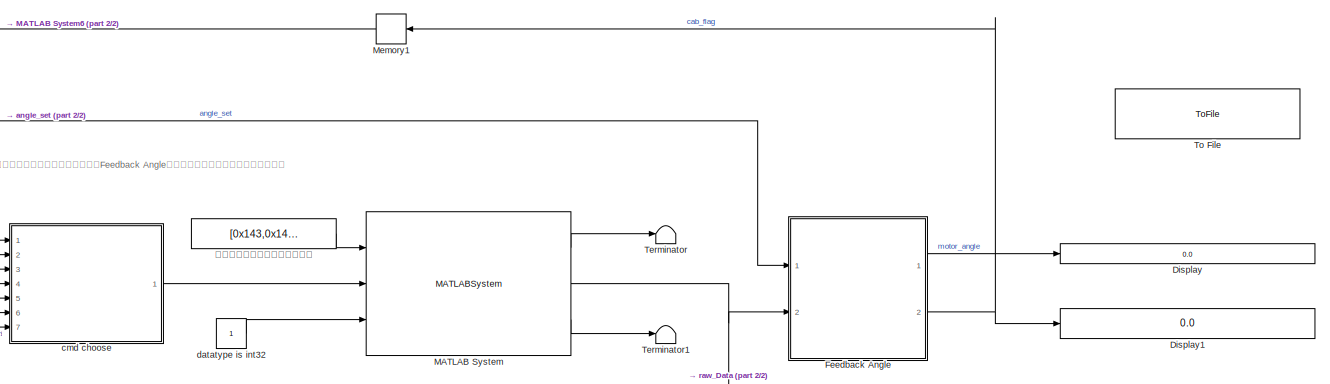
[diagram: root canvas - part 1/2, top right region]
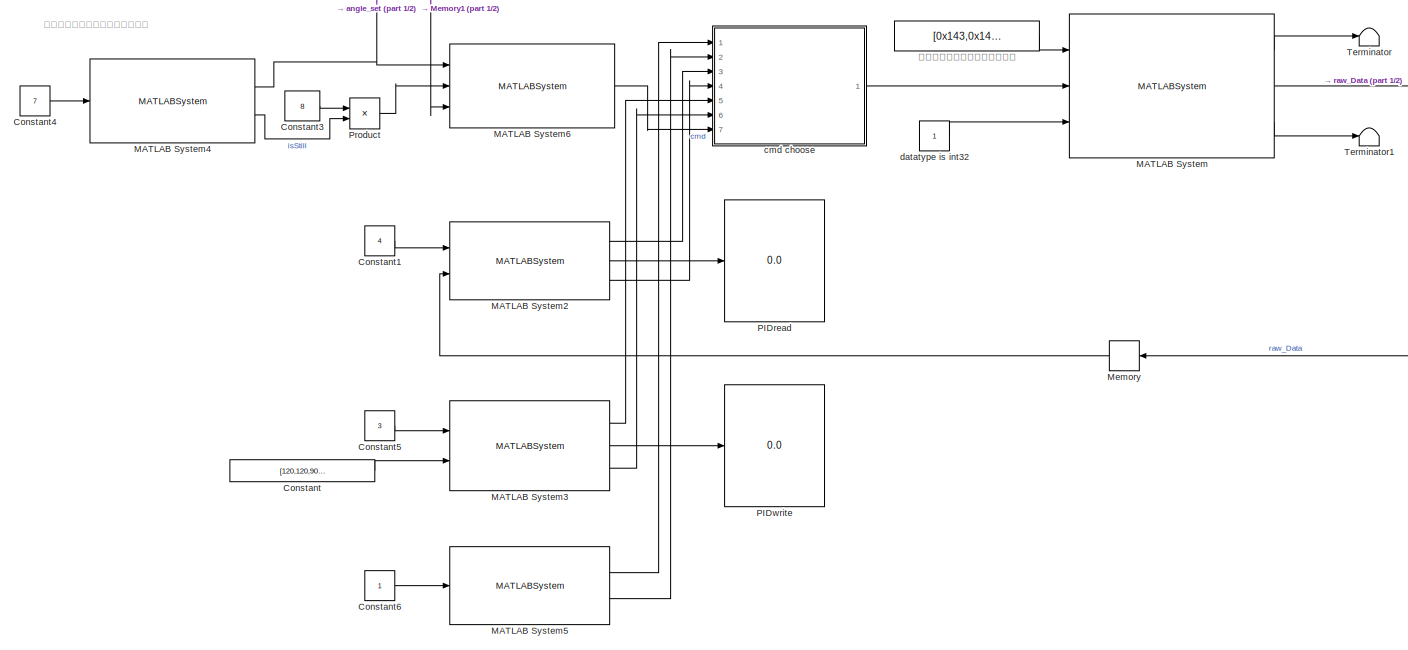
[diagram: root canvas - part 2/2, center side, full height]
MODEL slx_6b6f434e803c
KIND model
CONFIG AbsTol = auto
CONFIG EnableMultiTasking = on
CONFIG FixedStep = 0.004
CONFIG MaxStep = auto
CONFIG MinStep = auto
CONFIG RelTol = 1e-3
CONFIG SampleTimeConstraint = Unconstrained
CONFIG SolverName = FixedStepAuto
CONFIG StartTime = 0.0
CONFIG StopTime = 600
BLOCK [Constant] Constant
  Value = [120,120,90,72,70,70]
BLOCK [Constant] Constant1
  OutDataTypeStr = double
  Value = 4
BLOCK [Constant] Constant3
  Value = 8
BLOCK [Constant] Constant4
  Value = 7
BLOCK [Constant] Constant5
  OutDataTypeStr = double
  Value = 3
BLOCK [Constant] Constant6
  OutDataTypeStr = double
BLOCK [Display] Display
  Decimation = 1
  Ports = [1]
BLOCK [Display] Display1
  Decimation = 1
  Ports = [1]
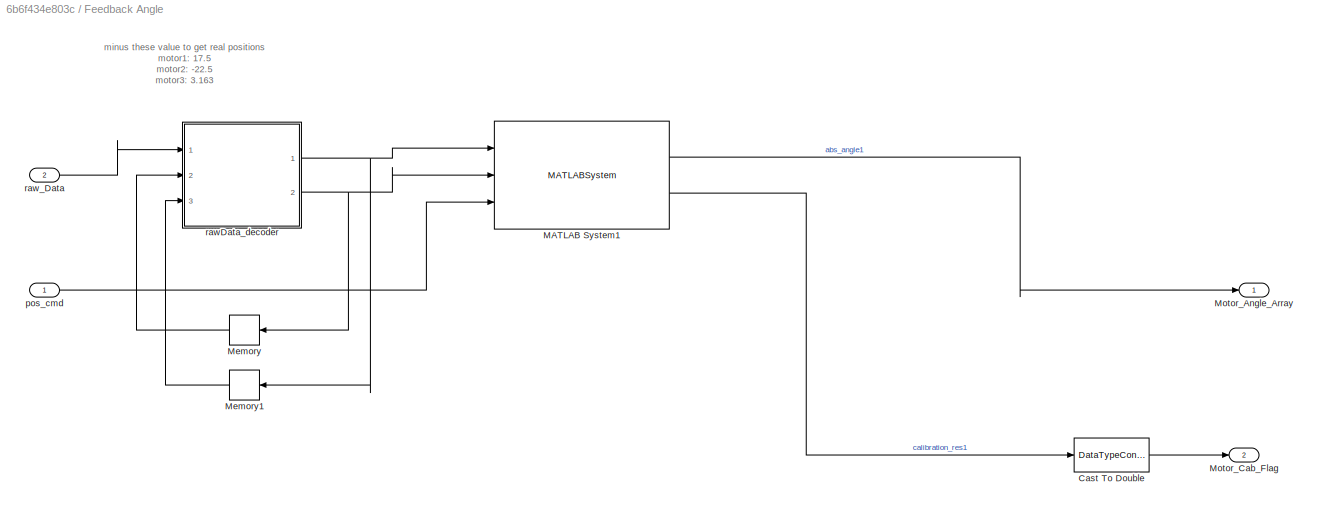
BLOCK [SubSystem] Feedback Angle
  Ports = [2, 2]
  RequestExecContextInheritance = off
BLOCK [DataTypeConversion] Feedback Angle/Cast To Double
  OutDataTypeStr = double
  RndMeth = Floor
  SaturateOnIntegerOverflow = off
BLOCK [MATLABSystem] Feedback Angle/MATLAB System1
  MaskDisplay = disp('MotorAngle');\nport_label('input',1,'speed');\nport_label('input',2,'sgl_angle');\nport_label('input',3,'pos_des');\nport_label('output',1,'abs_angle');\nport_label('output',2,'calibration');
  MaskType = MotorAngle
  Ports = [3, 2]
  SimulateUsing = Code generation
  System = MotorAngle
  angleOff = 22.5
BLOCK [Memory] Feedback Angle/Memory
  NameLocation = top
BLOCK [Memory] Feedback Angle/Memory1
  NameLocation = top
BLOCK [Outport] Feedback Angle/Motor_Angle_Array
BLOCK [Outport] Feedback Angle/Motor_Cab_Flag
  Port = 2
BLOCK [Inport] Feedback Angle/pos_cmd
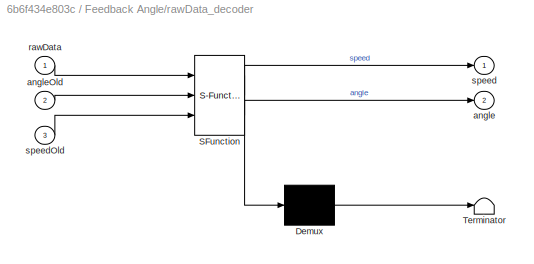
BLOCK [SubSystem] Feedback Angle/rawData_decoder
  ErrorFcn = Stateflow.Translate.translate
  PermitHierarchicalResolution = ExplicitOnly
  Ports = [3, 2]
  RequestExecContextInheritance = off
  SFBlockType = MATLAB Function
  TreatAsAtomicUnit = on
BLOCK [Demux] Feedback Angle/rawData_decoder/ Demux 
  Outputs = 1
  Ports = [1, 1]
BLOCK [S-Function] Feedback Angle/rawData_decoder/ SFunction 
  EnableBusSupport = on
  FunctionName = sf_sfun
  PortCounts = [3 3]
  Ports = [3, 3]
  SFcnIsStateOwnerBlock = off
  SFunctionDeploymentMode = off
  Tag = Stateflow S-Function 3
BLOCK [Terminator] Feedback Angle/rawData_decoder/ Terminator 
BLOCK [Outport] Feedback Angle/rawData_decoder/angle
  Port = 2
BLOCK [Inport] Feedback Angle/rawData_decoder/angleOld
  Port = 2
BLOCK [Inport] Feedback Angle/rawData_decoder/rawData
BLOCK [Outport] Feedback Angle/rawData_decoder/speed
BLOCK [Inport] Feedback Angle/rawData_decoder/speedOld
  Port = 3
BLOCK [Inport] Feedback Angle/raw_Data
  Port = 2
BLOCK [MATLABSystem] MATLAB System
  MaskDisplay = disp('CAN_Driver');\nport_label('input',1,'canID_array');\nport_label('input',2,'send_RawData');\nport_label('input',3,'dev_Num');\nport_label('output',1,'recv_ID');\nport_label('output',2,'recv_rawData');\nport_label('output',3,'err');
  MaskType = canSendRecv
  Ports = [3, 3]
  System = canSendRecv
  canPort = can1
BLOCK [MATLABSystem] MATLAB System2
  MaskDisplay = disp('readPIDpara');\nport_label('input',1,'EnNum');\nport_label('input',2,'rawData');\nport_label('output',1,'cmd');\nport_label('output',2,'PID_read');\nport_label('output',3,'cmdEN');
  MaskType = readPIDpara
  Ports = [2, 3]
  SimulateUsing = Code generation
  System = readPIDpara
BLOCK [MATLABSystem] MATLAB System3
  MaskDisplay = disp('writePIDpara');\nport_label('input',1,'EnNum');\nport_label('input',2,'pidArray');\nport_label('output',1,'cmd');\nport_label('output',2,'PID_write');\nport_label('output',3,'cmdEN');
  MaskType = writePIDpara
  Ports = [2, 3]
  SimulateUsing = Code generation
  System = writePIDpara
  toRAM = 0
BLOCK [MATLABSystem] MATLAB System4
  Amp = 10
  MaskDisplay = disp('squareWave_OP');\nport_label('input',1,'ENNum');\nport_label('output',1,'Tra');\nport_label('output',2,'isStill');
  MaskType = squareWave_OP
  OffsetTime = 0
  Ports = [1, 2]
  SampleTime = 0.004
  SimulateUsing = Code generation
  System = squareWave_OP
  TickTime = 0
  tHigh = 0.5
  tLow = 0.5
BLOCK [MATLABSystem] MATLAB System5
  MaskDisplay = disp('stopMotor');\nport_label('input',1,'EnNum');\nport_label('output',1,'cmd');\nport_label('output',2,'cmdEN');
  MaskType = stopMotor
  Ports = [1, 2]
  SimulateUsing = Code generation
  System = stopMotor
BLOCK [MATLABSystem] MATLAB System6
  MaskDisplay = disp('Sgl_posCtr_viaSpeed');\nport_label('input',1,'pos');\nport_label('input',2,'speed');\nport_label('input',3,'calFlag');\nport_label('output',1,'cmd');
  MaskType = Sgl_posCtr_viaSpeed
  Ports = [3, 1]
  SimulateUsing = Code generation
  System = Sgl_posCtr_viaSpeed
  dt = 0.004
BLOCK [Memory] Memory
  InitialCondition = zeros(32,1)
  NameLocation = top
BLOCK [Memory] Memory1
  NameLocation = top
BLOCK [Display] PIDread
  Decimation = 1
  Ports = [1]
BLOCK [Display] PIDwrite
  Decimation = 1
  Ports = [1]
BLOCK [Product] Product
  Ports = [2, 1]
BLOCK [Terminator] Terminator
BLOCK [Terminator] Terminator1
BLOCK [ToFile] To File
  Commented = on
  Filename = sl_dataRec1.mat
  MatrixName = MotorAngle_cab_Encoder
  Ports = [1]
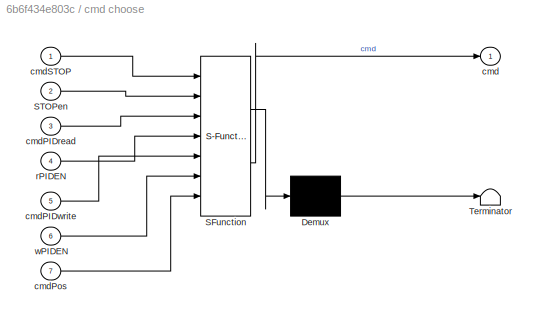
BLOCK [SubSystem] cmd choose
  ErrorFcn = Stateflow.Translate.translate
  PermitHierarchicalResolution = ExplicitOnly
  Ports = [7, 1]
  RequestExecContextInheritance = off
  SFBlockType = MATLAB Function
  TreatAsAtomicUnit = on
BLOCK [Demux] cmd choose/ Demux 
  Outputs = 1
  Ports = [1, 1]
BLOCK [S-Function] cmd choose/ SFunction 
  EnableBusSupport = on
  FunctionName = sf_sfun
  PortCounts = [7 2]
  Ports = [7, 2]
  SFcnIsStateOwnerBlock = off
  SFunctionDeploymentMode = off
  Tag = Stateflow S-Function 2
BLOCK [Terminator] cmd choose/ Terminator 
BLOCK [Inport] cmd choose/STOPen
  Port = 2
BLOCK [Outport] cmd choose/cmd
BLOCK [Inport] cmd choose/cmdPIDread
  Port = 3
BLOCK [Inport] cmd choose/cmdPIDwrite
  Port = 5
BLOCK [Inport] cmd choose/cmdPos
  Port = 7
BLOCK [Inport] cmd choose/cmdSTOP
BLOCK [Inport] cmd choose/rPIDEN
  Port = 4
BLOCK [Inport] cmd choose/wPIDEN
  Port = 6
BLOCK [Constant] datatype is int32
  OutDataTypeStr = int32
BLOCK [Constant] 此数组必须包含两个以上的数字
  Value = [0x143,0x142]
ANNOTATION (root): 注意，如果更换电机编号，还需要到Feedback Angle子函数中更改电机位置零点偏置数值！
ANNOTATION (root): 面对电机输出轴，顺时针旋转为正
ANNOTATION Feedback Angle: minus these value to get real positions motor1: 17.5 motor2: -22.5 motor3: 3.163
LINE Constant1:1 -> MATLAB System2:1
LINE Constant3:1 -> Product:1
LINE Constant4:1 -> MATLAB System4:1
LINE Constant5:1 -> MATLAB System3:1
LINE Constant6:1 -> MATLAB System5:1
LINE Constant:1 -> MATLAB System3:2
LINE Feedback Angle/Cast To Double:1 -> Feedback Angle/Motor_Cab_Flag:1
LINE Feedback Angle/MATLAB System1:1 -> Feedback Angle/Motor_Angle_Array:1
LINE Feedback Angle/MATLAB System1:2 -> Feedback Angle/Cast To Double:1
LINE Feedback Angle/Memory1:1 -> Feedback Angle/rawData_decoder:3
LINE Feedback Angle/Memory:1 -> Feedback Angle/rawData_decoder:2
LINE Feedback Angle/pos_cmd:1 -> Feedback Angle/MATLAB System1:3
NET Feedback Angle/rawData_decoder:1 -> Feedback Angle/MATLAB System1:1, Feedback Angle/Memory1:1
NET Feedback Angle/rawData_decoder:2 -> Feedback Angle/MATLAB System1:2, Feedback Angle/Memory:1
LINE Feedback Angle/raw_Data:1 -> Feedback Angle/rawData_decoder:1
LINE Feedback Angle:1 -> Display:1
NET Feedback Angle:2 -> Display1:1, Memory1:1
LINE MATLAB System2:1 -> cmd choose:3
LINE MATLAB System2:2 -> PIDread:1
LINE MATLAB System2:3 -> cmd choose:4
LINE MATLAB System3:1 -> cmd choose:5
LINE MATLAB System3:2 -> PIDwrite:1
LINE MATLAB System3:3 -> cmd choose:6
NET MATLAB System4:1 -> Feedback Angle:1, MATLAB System6:1
LINE MATLAB System4:2 -> Product:2
LINE MATLAB System5:1 -> cmd choose:1
LINE MATLAB System5:2 -> cmd choose:2
LINE MATLAB System6:1 -> cmd choose:7
LINE MATLAB System:1 -> Terminator:1
NET MATLAB System:2 -> Feedback Angle:2, Memory:1
LINE MATLAB System:3 -> Terminator1:1
LINE Memory1:1 -> MATLAB System6:3
LINE Memory:1 -> MATLAB System2:2
LINE Product:1 -> MATLAB System6:2
LINE cmd choose:1 -> MATLAB System:2
LINE datatype is int32:1 -> MATLAB System:3
LINE 此数组必须包含两个以上的数字:1 -> MATLAB System:1
note: NET lines group one-source signal fan-out (src -> all destinations, sorted); 1:1 wires keep LINE
CHART cmd choose states=1 transitions=1
  STATE_LABEL 'eML_blk_kernel()'
  STATE_LABEL 'SCRIPT:\nfunction cmd = fcn(cmdSTOP,STOPen,cmdPIDread,rPIDEN,cmdPIDwrite,wPIDEN,cmdPos)\nif STOPen>0.5\n    cmd=cmdSTOP;\n    return;\nend\nif rPIDEN>0.5\n    cmd=cmdPIDread;\n    return;\nend\nif wPIDEN>0.5\n    cmd=cmdPIDwrite;\n    return;\nend\ncmd=cmdPos;\n'
CHART Feedback Angle/rawData_decoder states=1 transitions=1
  STATE_LABEL 'eML_blk_kernel()'
  STATE_LABEL "SCRIPT:\nfunction [speed,angle] = fcn(rawData,angleOld,speedOld)\n% angle : single loop position, degree\n% speed : speed after the reducer, degree per second\n\nif (rawData(1)==0xa4 || rawData(1)==0xa2)\nidx=1;\nangle = double(typecast(rawData(idx+6:idx+7),'uint16'))/65535*360;\nspeed = double(typecast(rawData(idx+4:idx+5),'int16'))/6;\nelse\n    angle=angleOld;\n    speed=speedOld;\nend"
CHART  states=0 transitions=0
CHART  states=0 transitions=0
